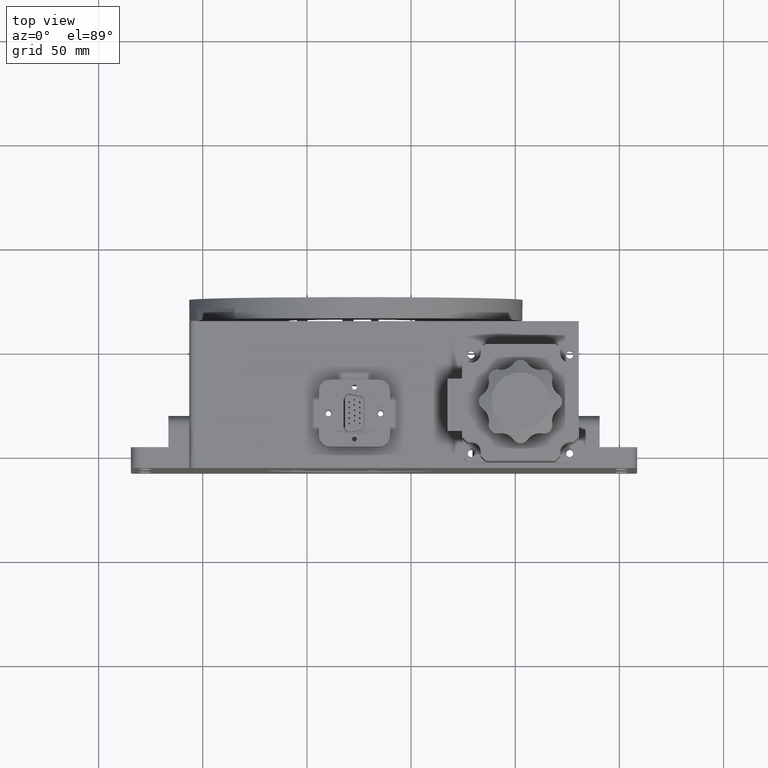
[diagram: clean part render]
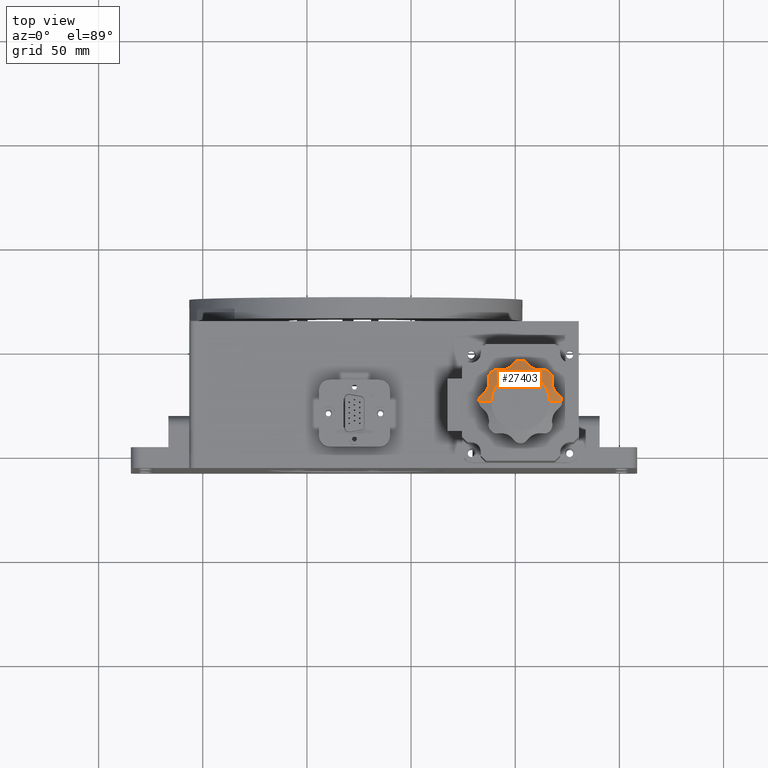
[diagram: same view with one face highlighted and labeled with its STEP entity id]
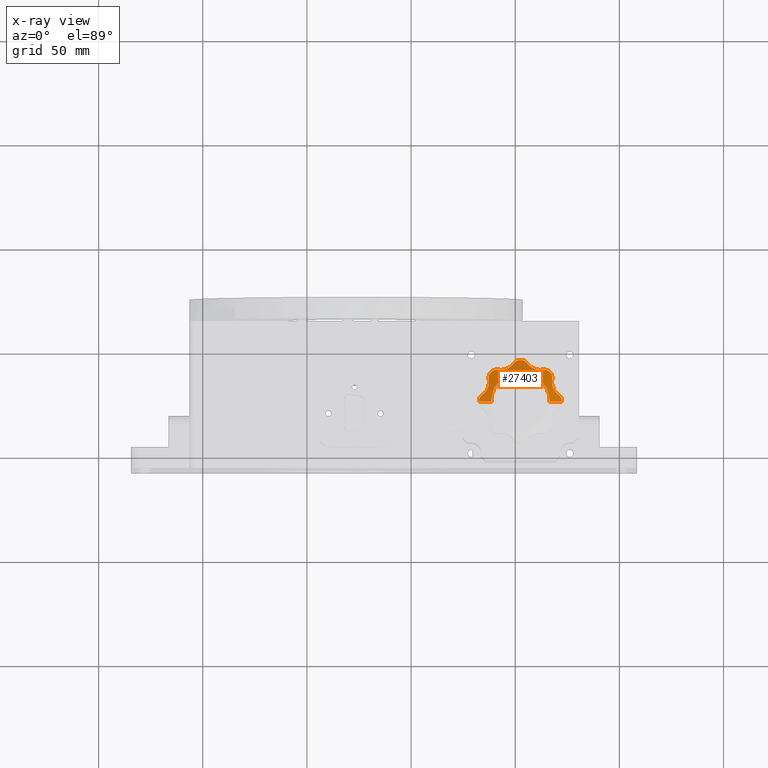
[diagram: x-ray of the same camera — body ghosted, the highlighted face saturated]
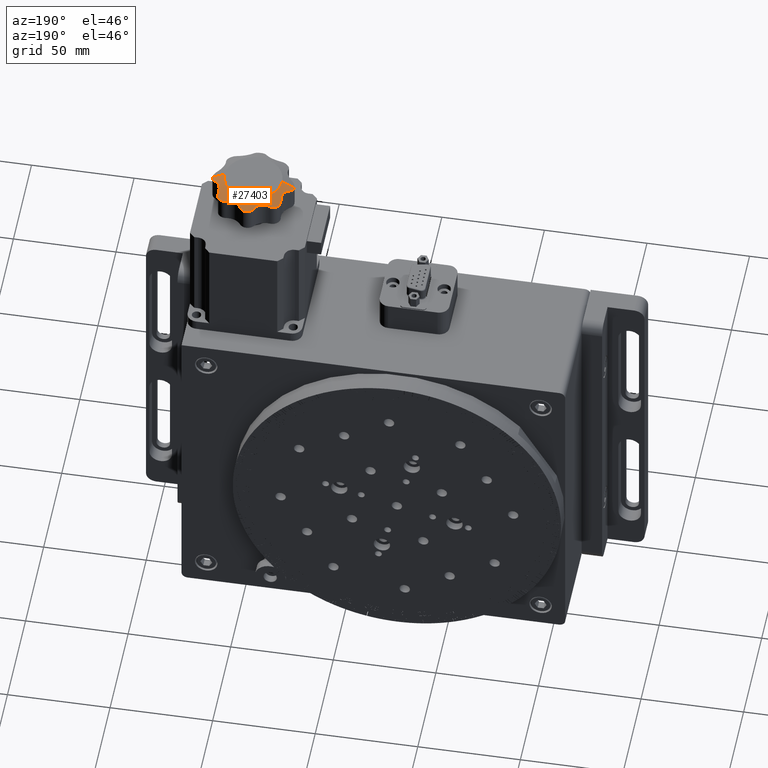
[diagram: same view with one face highlighted and labeled with its STEP entity id]
A machine part, top view. The second image highlights one B-rep face of the part: STEP entity #27403.
The next image is the same camera in x-ray: the body ghosted, the highlighted face saturated — about 0% of this face is hidden behind the body in this view.
A second angle (auxiliary view) of the same face is appended — the face is thin or edge-on in the first view.
In plain terms, the highlighted conical surface has half-angle 63 deg.
Its self-contained STEP definition (entity closure, byte-faithful):
#19 = CARTESIAN_POINT ( 'NONE',  ( 237.3913583251216700, 32.26983697631885000, 157.9076970187258000 ) ) ;
#92 = CARTESIAN_POINT ( 'NONE',  ( 267.6593156579953600, 31.75294113229230300, 158.0153070941807400 ) ) ;
#359 = CARTESIAN_POINT ( 'NONE',  ( 234.7460957891600500, 26.68400874897199400, 157.6957180678858500 ) ) ;
#555 = CARTESIAN_POINT ( 'NONE',  ( 267.6419160565790200, 32.34121878844458600, 157.8681554785693200 ) ) ;
#1271 = CARTESIAN_POINT ( 'NONE',  ( 267.6419160565790200, 32.77534877471968100, 157.7520165911938100 ) ) ;
#2040 = CARTESIAN_POINT ( 'NONE',  ( 264.2549869360204900, 38.29609788310630600, 157.1045522164380400 ) ) ;
#2088 = CARTESIAN_POINT ( 'NONE',  ( 272.2155535825086200, 24.49970920865670000, 156.8593759186634600 ) ) ;
#2996 = B_SPLINE_CURVE_WITH_KNOTS ( 'NONE', 3,
 ( #18462, #26855, #2088, #10441, #69002, #18820, #77401, #27234, #85816, #35621 ),
 .UNSPECIFIED., .F., .F.,
 ( 4, 2, 2, 2, 4 ),
 ( 1.845941825692407700E-006, 0.0007127976259201230600, 0.001423749310014553700, 0.002134700994108984200, 0.002845652678203415000 ),
 .UNSPECIFIED. ) ;
#3100 = CARTESIAN_POINT ( 'NONE',  ( 237.5383515512843900, 35.99283737778640100, 156.8382766644687400 ) ) ;
#3200 = CARTESIAN_POINT ( 'NONE',  ( 256.6521355745474600, 40.25110680748105800, 157.8936131362178500 ) ) ;
#3814 = AXIS2_PLACEMENT_3D ( 'NONE', #62390, #12269, #70787 ) ;
#4942 = ORIENTED_EDGE ( 'NONE', *, *, #90875, .T. ) ;
#5010 = VERTEX_POINT ( 'NONE', #81572 ) ;
#5363 = ORIENTED_EDGE ( 'NONE', *, *, #67813, .T. ) ;
#5914 = DIRECTION ( 'NONE',  ( 1.163031447535773400E-017, 1.979074067935038000E-017, 1.000000000000000000 ) ) ;
#5938 = AXIS2_PLACEMENT_3D ( 'NONE', #34021, #92600, #42446 ) ;
#6219 = CARTESIAN_POINT ( 'NONE',  ( 254.4316530506146100, 42.53368578314128000, 156.9340889782051200 ) ) ;
#6789 = CARTESIAN_POINT ( 'NONE',  ( 245.6636187473102700, 38.57582878604114300, 158.2667672571537300 ) ) ;
#6890 = EDGE_CURVE ( 'NONE', #105737, #55947, #78995, .T. ) ;
#7569 = CARTESIAN_POINT ( 'NONE',  ( 241.8777998498895600, 38.25348212235918100, 157.4624876279490900 ) ) ;
#8078 = CARTESIAN_POINT ( 'NONE',  ( 269.8976088687136900, 26.98524406972234900, 157.8431600133842200 ) ) ;
#8365 = CARTESIAN_POINT ( 'NONE',  ( 237.2184003983645900, 30.86624647211544200, 158.1777368135645400 ) ) ;
#8440 = CARTESIAN_POINT ( 'NONE',  ( 267.6419160565790200, 32.34121878844458600, 157.8681554785693200 ) ) ;
#8715 = CARTESIAN_POINT ( 'NONE',  ( 234.2031295973080500, 26.27481088816402600, 157.4624876279490900 ) ) ;
#9290 = EDGE_CURVE ( 'NONE', #34991, #58186, #10231, .T. ) ;
#9447 = ORIENTED_EDGE ( 'NONE', *, *, #81890, .F. ) ;
#9630 = CARTESIAN_POINT ( 'NONE',  ( 267.7534821223590600, 33.62220015011084200, 157.4624876279490600 ) ) ;
#9690 = CARTESIAN_POINT ( 'NONE',  ( 267.6419160565790200, 32.34121878844458600, 157.8681554785693200 ) ) ;
#10231 = CIRCLE ( 'NONE', #29215, 19.88783151651546500 ) ;
#10389 = CARTESIAN_POINT ( 'NONE',  ( 263.5722132574891200, 38.31287218392945700, 157.3055536155509600 ) ) ;
#10441 = CARTESIAN_POINT ( 'NONE',  ( 272.0159357040424800, 24.92163010490067200, 156.9420244716241900 ) ) ;
#11031 = CARTESIAN_POINT ( 'NONE',  ( 237.2465178776408300, 33.62220015011070000, 157.4624876279490600 ) ) ;
#11200 = CARTESIAN_POINT ( 'NONE',  ( 260.7157047989857100, 38.21937809799151600, 158.1225106314464300 ) ) ;
#11433 = EDGE_CURVE ( 'NONE', #74063, #96725, #93611, .T. ) ;
#11554 = CARTESIAN_POINT ( 'NONE',  ( 267.2845492367055200, 36.30199031336037800, 156.7999999999999500 ) ) ;
#11559 = CARTESIAN_POINT ( 'NONE',  ( 255.9698768873822100, 41.01875098533089000, 157.5844689233042900 ) ) ;
#11702 = CARTESIAN_POINT ( 'NONE',  ( 237.1862915010153500, 34.31370849898488000, 157.2321513908461000 ) ) ;
#12133 = CARTESIAN_POINT ( 'NONE',  ( 252.4999999999999400, 22.99999999999997200, 156.7999999999999500 ) ) ;
#12269 = DIRECTION ( 'NONE',  ( 1.163031447535773400E-017, 1.979074067935038000E-017, 1.000000000000000000 ) ) ;
#12905 = CARTESIAN_POINT ( 'NONE',  ( 267.8353190381724300, 34.52552917857944000, 157.1610722483294500 ) ) ;
#12958 = B_SPLINE_CURVE_WITH_KNOTS ( 'NONE', 3,
 ( #45470, #3100, #20575, #79153, #28994, #87561, #37375, #95965 ),
 .UNSPECIFIED., .F., .F.,
 ( 4, 2, 2, 4 ),
 ( 1.845941825613747800E-006, 0.001060830556685183900, 0.001590322864114977400, 0.002119815171544771200 ),
 .UNSPECIFIED. ) ;
#13722 = CARTESIAN_POINT ( 'NONE',  ( 248.8352221863461300, 40.74086692416695900, 157.7063469930233500 ) ) ;
#14217 = VERTEX_POINT ( 'NONE', #108242 ) ;
#14450 = CARTESIAN_POINT ( 'NONE',  ( 248.3713421540838900, 40.23818802919775800, 157.9076968662358800 ) ) ;
#14559 = CARTESIAN_POINT ( 'NONE',  ( 253.5483274682062800, 42.86018257591580000, 156.7999999999999500 ) ) ;
#14720 = EDGE_CURVE ( 'NONE', #23153, #32430, #86217, .T. ) ;
#15154 = ORIENTED_EDGE ( 'NONE', *, *, #46894, .T. ) ;
#15171 = CARTESIAN_POINT ( 'NONE',  ( 245.1526071381896700, 38.41300267155308700, 158.2338197077304800 ) ) ;
#15235 = CARTESIAN_POINT ( 'NONE',  ( 251.0002907913432200, 42.71555358250861900, 156.8593759186634600 ) ) ;
#16450 = CARTESIAN_POINT ( 'NONE',  ( 269.1262320310050900, 27.88224356309235200, 158.1053658163796500 ) ) ;
#16744 = CARTESIAN_POINT ( 'NONE',  ( 236.9335400712124600, 29.84310483437166200, 158.2712213111371400 ) ) ;
#17211 = CARTESIAN_POINT ( 'NONE',  ( 255.7748108881640100, 41.29687040269193700, 157.4624876279490900 ) ) ;
#17952 = VERTEX_POINT ( 'NONE', #9690 ) ;
#18225 = CARTESIAN_POINT ( 'NONE',  ( 266.4999999999999400, 22.99999999999997900, 159.7999999999999800 ) ) ;
#18462 = CARTESIAN_POINT ( 'NONE',  ( 272.3601825759157600, 24.04832746820619600, 156.7999999999999500 ) ) ;
#18749 = ORIENTED_EDGE ( 'NONE', *, *, #62883, .T. ) ;
#18773 = CARTESIAN_POINT ( 'NONE',  ( 263.1222001501103600, 38.25348212235939400, 157.4624876279490600 ) ) ;
#18820 = CARTESIAN_POINT ( 'NONE',  ( 271.6280055042728300, 25.50394357603632800, 157.1045522205683900 ) ) ;
#19212 = EDGE_CURVE ( 'NONE', #58782, #58629, #2996, .T. ) ;
#19428 = CARTESIAN_POINT ( 'NONE',  ( 241.4313529255851700, 38.33184240520761000, 157.2997279871319700 ) ) ;
#19587 = CARTESIAN_POINT ( 'NONE',  ( 259.6807303797405700, 38.45506756187331400, 158.2519293113117800 ) ) ;
#20380 = ORIENTED_EDGE ( 'NONE', *, *, #48576, .T. ) ;
#20522 = DIRECTION ( 'NONE',  ( -1.000000000000000000, -1.744507413526949400E-016, 0.0000000000000000000 ) ) ;
#20575 = CARTESIAN_POINT ( 'NONE',  ( 237.4071583832806300, 35.66974006896801800, 156.8940759838538700 ) ) ;
#20623 = EDGE_LOOP ( 'NONE', ( #9447, #40504, #89248, #54652, #91943, #99851, #52096, #61997, #32359, #54977, #20380, #83063, #18749, #38991, #5363, #41905, #90691, #30438, #55347, #4942, #15154, #29695 ) ) ;
#21310 = CARTESIAN_POINT ( 'NONE',  ( 267.7534821223590600, 33.62220015011084200, 157.4624876279490600 ) ) ;
#23153 = VERTEX_POINT ( 'NONE', #64590 ) ;
#23569 = CARTESIAN_POINT ( 'NONE',  ( 244.2895339026112300, 38.22019407640752300, 158.1234121039777300 ) ) ;
#23635 = CARTESIAN_POINT ( 'NONE',  ( 250.3756728672116800, 42.39726155890812700, 156.9914101639428200 ) ) ;
#23819 = CARTESIAN_POINT ( 'NONE',  ( 233.5065113060109400, 25.69392727460923400, 157.1610719225172900 ) ) ;
#24223 = EDGE_CURVE ( 'NONE', #86134, #73723, #51222, .T. ) ;
#24484 = EDGE_CURVE ( 'NONE', #58629, #17952, #82072, .T. ) ;
#24857 = CARTESIAN_POINT ( 'NONE',  ( 268.6329812239821400, 28.62713173099844600, 158.2288222905056900 ) ) ;
#25126 = CARTESIAN_POINT ( 'NONE',  ( 236.6521741729587200, 29.17972233872338400, 158.2667672483696300 ) ) ;
#26805 = CARTESIAN_POINT ( 'NONE',  ( 265.5944398022851900, 37.90344518668395300, 156.8256971238457700 ) ) ;
#26855 = CARTESIAN_POINT ( 'NONE',  ( 272.2974943339667700, 24.27915997677382300, 156.8256971240976400 ) ) ;
#27099 = DIRECTION ( 'NONE',  ( 1.163031447535773400E-017, 1.979074067935038000E-017, 1.000000000000000000 ) ) ;
#27234 = CARTESIAN_POINT ( 'NONE',  ( 271.1570728212484500, 25.99859869842762800, 157.3055536226904100 ) ) ;
#27283 = B_SPLINE_CURVE_WITH_KNOTS ( 'NONE', 3,
 ( #47847, #56287, #15235, #73783, #23635, #82187, #32008, #90614, #40434, #98988 ),
 .UNSPECIFIED., .F., .F.,
 ( 4, 2, 2, 2, 4 ),
 ( 1.845941825703057600E-006, 0.0007127976259200867400, 0.001423749310014470500, 0.002134700994108854500, 0.002845652678203238100 ),
 .UNSPECIFIED. ) ;
#27403 = ADVANCED_FACE ( 'NONE', ( #77408 ), #66921, .T. ) ;
#27996 = CARTESIAN_POINT ( 'NONE',  ( 258.8447139801065800, 38.77245465182242200, 158.2715224530973900 ) ) ;
#28994 = CARTESIAN_POINT ( 'NONE',  ( 237.2407862417136900, 34.99380450088322200, 157.0444533669841900 ) ) ;
#29215 = AXIS2_PLACEMENT_3D ( 'NONE', #76544, #27099, #57479 ) ;
#29695 = ORIENTED_EDGE ( 'NONE', *, *, #52135, .F. ) ;
#29711 = CARTESIAN_POINT ( 'NONE',  ( 267.6782867069437700, 35.44651678098869500, 156.9340889378584100 ) ) ;
#30438 = ORIENTED_EDGE ( 'NONE', *, *, #82370, .T. ) ;
#31600 = CARTESIAN_POINT ( 'NONE',  ( 249.2251891118359000, 41.29687040269195100, 157.4624876279490900 ) ) ;
#31940 = CARTESIAN_POINT ( 'NONE',  ( 243.2376291435349700, 38.13437783158879300, 157.8936132756212800 ) ) ;
#32008 = CARTESIAN_POINT ( 'NONE',  ( 249.8215938939477800, 41.97955883692399200, 157.1674099949588600 ) ) ;
#32197 = CARTESIAN_POINT ( 'NONE',  ( 232.7654975517237100, 24.51111057135554100, 156.8515187176439300 ) ) ;
#32359 = ORIENTED_EDGE ( 'NONE', *, *, #34734, .T. ) ;
#32430 = VERTEX_POINT ( 'NONE', #103499 ) ;
#33148 = CARTESIAN_POINT ( 'NONE',  ( 237.2465178776408300, 33.62220015011070000, 157.4624876279490600 ) ) ;
#33219 = CARTESIAN_POINT ( 'NONE',  ( 268.2301810557759700, 29.43182977399426300, 158.2757041354542800 ) ) ;
#33388 = CIRCLE ( 'NONE', #3814, 13.99999999999998400 ) ;
#33454 = B_SPLINE_CURVE_WITH_KNOTS ( 'NONE', 3,
 ( #102965, #44467, #61331, #11200, #69752, #19587, #78160, #27996, #86571, #36386, #94966, #44830, #103329, #53304, #3200, #61688, #11559, #70107 ),
 .UNSPECIFIED., .F., .F.,
 ( 4, 2, 2, 2, 2, 2, 2, 2, 4 ),
 ( 2.131679596593171900E-007, 0.002139037759767207400, 0.003208450055671061400, 0.004277862351574915300, 0.004812568499526923000, 0.005347274647478929800, 0.006416686943382944200, 0.007486099239286959600, 0.008555511535190973200 ),
 .UNSPECIFIED. ) ;
#33522 = CARTESIAN_POINT ( 'NONE',  ( 236.4059696899273000, 28.70324688186116900, 158.2338196571570600 ) ) ;
#34021 = CARTESIAN_POINT ( 'NONE',  ( 252.4999999999999400, 22.99999999999997200, 156.7999999999999500 ) ) ;
#34734 = EDGE_CURVE ( 'NONE', #67130, #103161, #37041, .T. ) ;
#34991 = VERTEX_POINT ( 'NONE', #82039 ) ;
#35621 = CARTESIAN_POINT ( 'NONE',  ( 270.7968704026918700, 26.27481088816415400, 157.4624876279490900 ) ) ;
#35659 = CARTESIAN_POINT ( 'NONE',  ( 263.1222001501103600, 38.25348212235939400, 157.4624876279490600 ) ) ;
#36163 = B_SPLINE_CURVE_WITH_KNOTS ( 'NONE', 3,
 ( #76911, #68869, #61173, #11031 ),
 .UNSPECIFIED., .F., .F.,
 ( 4, 4 ),
 ( 0.002119815171544771200, 0.002845652650325450800 ),
 .UNSPECIFIED. ) ;
#36230 = CARTESIAN_POINT ( 'NONE',  ( 240.0534832190115500, 38.17828670694424900, 156.9340889378583500 ) ) ;
#36386 = CARTESIAN_POINT ( 'NONE',  ( 258.3594398049402800, 39.00844370797665300, 158.2479042270338700 ) ) ;
#37041 = B_SPLINE_CURVE_WITH_KNOTS ( 'NONE', 3,
 ( #43658, #26805, #76999, #102160, #52108, #2040, #60522, #10389, #68956, #18773 ),
 .UNSPECIFIED., .F., .F.,
 ( 4, 2, 2, 2, 4 ),
 ( 1.845941825669782200E-006, 0.0007127976189506428400, 0.001423749296075616000, 0.002134700973200589400, 0.002845652650325562200 ),
 .UNSPECIFIED. ) ;
#37375 = CARTESIAN_POINT ( 'NONE',  ( 237.1862915010153800, 34.48296988118300300, 157.1809043312552800 ) ) ;
#38085 = CARTESIAN_POINT ( 'NONE',  ( 267.2845492367055200, 36.30199031336037800, 156.7999999999999500 ) ) ;
#38782 = B_SPLINE_CURVE_WITH_KNOTS ( 'NONE', 3,
 ( #56323, #47883, #89603, #6219, #64704, #14559 ),
 .UNSPECIFIED., .F., .F.,
 ( 4, 2, 4 ),
 ( 2.561101793545407800E-007, 0.001425904833248670300, 0.002851553556317986200 ),
 .UNSPECIFIED. ) ;
#38991 = ORIENTED_EDGE ( 'NONE', *, *, #11433, .T. ) ;
#39757 = CARTESIAN_POINT ( 'NONE',  ( 252.4999999999999400, 22.99999999999997200, 159.7999999999999800 ) ) ;
#40021 = CARTESIAN_POINT ( 'NONE',  ( 247.5476549759786700, 39.57110591280400800, 158.1225106727056300 ) ) ;
#40105 = VERTEX_POINT ( 'NONE', #11702 ) ;
#40366 = CARTESIAN_POINT ( 'NONE',  ( 242.2123927498954600, 38.19475443748547100, 157.5844690265437600 ) ) ;
#40434 = CARTESIAN_POINT ( 'NONE',  ( 249.3550554229111600, 41.48203000465138500, 157.3812778788823700 ) ) ;
#40504 = ORIENTED_EDGE ( 'NONE', *, *, #82750, .T. ) ;
#40682 = EDGE_CURVE ( 'NONE', #73723, #67130, #81731, .T. ) ;
#41089 = CARTESIAN_POINT ( 'NONE',  ( 267.7534821223590600, 33.62220015011084200, 157.4624876279490600 ) ) ;
#41317 = CARTESIAN_POINT ( 'NONE',  ( 270.3281509931109100, 26.60355895203695600, 157.6680647907423900 ) ) ;
#41681 = CARTESIAN_POINT ( 'NONE',  ( 267.9254955901666300, 30.28906229173465500, 158.2416332507994800 ) ) ;
#41905 = ORIENTED_EDGE ( 'NONE', *, *, #9290, .T. ) ;
#41954 = CARTESIAN_POINT ( 'NONE',  ( 235.9320209486633600, 27.95662572260395300, 158.1234119966748600 ) ) ;
#42232 = VECTOR ( 'NONE', #75123, 1000.000000000000100 ) ;
#42446 = DIRECTION ( 'NONE',  ( -1.000000000000000000, -1.744507413526949400E-016, 0.0000000000000000000 ) ) ;
#43658 = CARTESIAN_POINT ( 'NONE',  ( 265.8019903133599700, 37.78454923670597800, 156.7999999999999500 ) ) ;
#44467 = CARTESIAN_POINT ( 'NONE',  ( 262.4532974490603600, 38.13607644208971000, 157.7063472167101300 ) ) ;
#44669 = CARTESIAN_POINT ( 'NONE',  ( 239.1980096866399500, 37.78454923670582100, 156.7999999999999500 ) ) ;
#44830 = CARTESIAN_POINT ( 'NONE',  ( 257.7461346814236000, 39.36615583551907300, 158.1782248456928200 ) ) ;
#44914 = LINE ( 'NONE', #49861, #42232 ) ;
#45470 = CARTESIAN_POINT ( 'NONE',  ( 237.7154507632943400, 36.30199031336023600, 156.7999999999999500 ) ) ;
#46724 = CARTESIAN_POINT ( 'NONE',  ( 265.8019903133599700, 37.78454923670597800, 156.7999999999999500 ) ) ;
#46894 = EDGE_CURVE ( 'NONE', #14217, #78367, #56680, .T. ) ;
#47847 = CARTESIAN_POINT ( 'NONE',  ( 251.4516725317936300, 42.86018257591580000, 156.7999999999999300 ) ) ;
#47883 = CARTESIAN_POINT ( 'NONE',  ( 255.5145346328822000, 41.66796470288769400, 157.2997281778311300 ) ) ;
#48227 = DIRECTION ( 'NONE',  ( -1.000000000000000000, -2.478176394252584600E-016, 0.0000000000000000000 ) ) ;
#48494 = CARTESIAN_POINT ( 'NONE',  ( 246.6491607120237900, 39.00592656906525900, 158.2519292569572300 ) ) ;
#48576 = EDGE_CURVE ( 'NONE', #99581, #105737, #38782, .T. ) ;
#49861 = CARTESIAN_POINT ( 'NONE',  ( 238.4999999999999700, 22.99999999999996800, 159.7999999999999800 ) ) ;
#49902 = CARTESIAN_POINT ( 'NONE',  ( 252.4999999999999400, 22.99999999999997200, 156.7999999999999500 ) ) ;
#50132 = CARTESIAN_POINT ( 'NONE',  ( 267.7302792191275700, 31.16214534001814600, 158.1301160192734600 ) ) ;
#50226 = AXIS2_PLACEMENT_3D ( 'NONE', #49902, #108358, #58339 ) ;
#50418 = CARTESIAN_POINT ( 'NONE',  ( 235.2488931925189500, 27.15213557454759700, 157.8936131362178800 ) ) ;
#50584 = VERTEX_POINT ( 'NONE', #61487 ) ;
#50640 = AXIS2_PLACEMENT_3D ( 'NONE', #12133, #70652, #20522 ) ;
#51222 = B_SPLINE_CURVE_WITH_KNOTS ( 'NONE', 3,
 ( #21310, #71440, #12905, #29711, #88272, #38085 ),
 .UNSPECIFIED., .F., .F.,
 ( 4, 2, 4 ),
 ( 2.128886231478264400E-007, 0.001425860909439165800, 0.002851508930255184100 ),
 .UNSPECIFIED. ) ;
#51899 = CARTESIAN_POINT ( 'NONE',  ( 266.4999999999999400, 22.99999999999997500, 159.7999999999999800 ) ) ;
#52096 = ORIENTED_EDGE ( 'NONE', *, *, #24223, .T. ) ;
#52108 = CARTESIAN_POINT ( 'NONE',  ( 264.7138090749869000, 38.21806130307884100, 156.9914101614185700 ) ) ;
#52135 = EDGE_CURVE ( 'NONE', #5010, #78367, #44914, .T. ) ;
#53304 = CARTESIAN_POINT ( 'NONE',  ( 256.9074919663826800, 40.01203306021657400, 157.9806272532480000 ) ) ;
#54557 = EDGE_CURVE ( 'NONE', #103161, #99581, #33454, .T. ) ;
#54652 = ORIENTED_EDGE ( 'NONE', *, *, #19212, .T. ) ;
#54977 = ORIENTED_EDGE ( 'NONE', *, *, #54557, .T. ) ;
#55347 = ORIENTED_EDGE ( 'NONE', *, *, #14720, .T. ) ;
#55947 = VERTEX_POINT ( 'NONE', #85158 ) ;
#56083 = CARTESIAN_POINT ( 'NONE',  ( 272.3601825759157600, 24.04832746820619600, 156.7999999999999500 ) ) ;
#56287 = CARTESIAN_POINT ( 'NONE',  ( 251.2208400232260900, 42.79749433396680300, 156.8256971240976400 ) ) ;
#56323 = CARTESIAN_POINT ( 'NONE',  ( 255.7748108881640100, 41.29687040269193700, 157.4624876279490900 ) ) ;
#56680 = CIRCLE ( 'NONE', #5938, 19.88783151651546500 ) ;
#56929 = CARTESIAN_POINT ( 'NONE',  ( 245.8335808355228900, 38.63919999233128500, 158.2715224592072300 ) ) ;
#57191 = CARTESIAN_POINT ( 'NONE',  ( 234.2031295973080500, 26.27481088816402600, 157.4624876279490900 ) ) ;
#57479 = DIRECTION ( 'NONE',  ( -1.000000000000000000, -1.744507413526949400E-016, 0.0000000000000000000 ) ) ;
#58186 = VERTEX_POINT ( 'NONE', #79922 ) ;
#58339 = DIRECTION ( 'NONE',  ( -1.000000000000000000, -1.744507413526949400E-016, 0.0000000000000000000 ) ) ;
#58500 = CARTESIAN_POINT ( 'NONE',  ( 237.2806219020085900, 31.21570479898601700, 158.1225106314464600 ) ) ;
#58591 = CARTESIAN_POINT ( 'NONE',  ( 267.6419160565790800, 32.04980657354980200, 157.9461143652519000 ) ) ;
#58629 = VERTEX_POINT ( 'NONE', #103579 ) ;
#58782 = VERTEX_POINT ( 'NONE', #56083 ) ;
#58854 = CARTESIAN_POINT ( 'NONE',  ( 234.4812490146690600, 26.46987688738226300, 157.5844689233042900 ) ) ;
#59749 = CARTESIAN_POINT ( 'NONE',  ( 267.6797273133559500, 33.20199227904081600, 157.6156813861331300 ) ) ;
#60522 = CARTESIAN_POINT ( 'NONE',  ( 264.0266556550420800, 38.31449387680402200, 157.1674099899103700 ) ) ;
#60677 = DIRECTION ( 'NONE',  ( 0.8910065241883690100, 2.485144142722091700E-016, -0.4539904997395444200 ) ) ;
#61169 = CARTESIAN_POINT ( 'NONE',  ( 241.8777998498895600, 38.25348212235918100, 157.4624876279490900 ) ) ;
#61173 = CARTESIAN_POINT ( 'NONE',  ( 237.2066009731743700, 33.84962121827253900, 157.3795775005561400 ) ) ;
#61331 = CARTESIAN_POINT ( 'NONE',  ( 261.7698369763184600, 38.10864167487839900, 157.9076970187258000 ) ) ;
#61487 = CARTESIAN_POINT ( 'NONE',  ( 272.3878315165154600, 22.99999999999997500, 156.7999999999999500 ) ) ;
#61688 = CARTESIAN_POINT ( 'NONE',  ( 256.1840087489719100, 40.75390421083990600, 157.6957180678858800 ) ) ;
#61757 = B_SPLINE_CURVE_WITH_KNOTS ( 'NONE', 3,
 ( #555, #1271, #59749, #9630 ),
 .UNSPECIFIED., .F., .F.,
 ( 4, 4 ),
 ( 0.007212503309002513100, 0.008555554693879356700 ),
 .UNSPECIFIED. ) ;
#61997 = ORIENTED_EDGE ( 'NONE', *, *, #40682, .T. ) ;
#62390 = CARTESIAN_POINT ( 'NONE',  ( 252.4999999999999400, 22.99999999999997200, 159.7999999999999800 ) ) ;
#62883 = EDGE_CURVE ( 'NONE', #55947, #74063, #27283, .T. ) ;
#64590 = CARTESIAN_POINT ( 'NONE',  ( 237.2465178776408300, 33.62220015011070000, 157.4624876279490600 ) ) ;
#64704 = CARTESIAN_POINT ( 'NONE',  ( 254.0111105713556000, 42.73450244827623100, 156.8515187176439300 ) ) ;
#65328 = CARTESIAN_POINT ( 'NONE',  ( 245.3235710117191700, 38.46292887568891700, 158.2479042614596900 ) ) ;
#66645 = CARTESIAN_POINT ( 'NONE',  ( 269.3120699247532500, 27.64567900398783400, 158.0471494995148300 ) ) ;
#66915 = CARTESIAN_POINT ( 'NONE',  ( 237.0449324381267800, 30.18073037974082200, 158.2519293113118400 ) ) ;
#66921 = CONICAL_SURFACE ( 'NONE', #80317, 13.99999999999998400, 1.099557428756430000 ) ;
#67130 = VERTEX_POINT ( 'NONE', #46724 ) ;
#67813 = EDGE_CURVE ( 'NONE', #96725, #34991, #102960, .T. ) ;
#68349 = AXIS2_PLACEMENT_3D ( 'NONE', #103254, #5914, #85766 ) ;
#68869 = CARTESIAN_POINT ( 'NONE',  ( 237.1862915010153500, 34.08168198380099100, 157.3024017722139800 ) ) ;
#68956 = CARTESIAN_POINT ( 'NONE',  ( 263.3449571646624500, 38.29258039298555600, 157.3812778587598900 ) ) ;
#69002 = CARTESIAN_POINT ( 'NONE',  ( 271.8972615589080400, 25.12432713278824900, 156.9914101639428200 ) ) ;
#69752 = CARTESIAN_POINT ( 'NONE',  ( 260.3662464721151700, 38.28159960163543500, 158.1777368135644800 ) ) ;
#70107 = CARTESIAN_POINT ( 'NONE',  ( 255.7748108881640100, 41.29687040269193700, 157.4624876279490900 ) ) ;
#70652 = DIRECTION ( 'NONE',  ( 1.163031447535773400E-017, 1.979074067935038000E-017, 1.000000000000000000 ) ) ;
#70787 = DIRECTION ( 'NONE',  ( -1.000000000000000000, -2.478176394252584600E-016, 0.0000000000000000000 ) ) ;
#71440 = CARTESIAN_POINT ( 'NONE',  ( 267.8318424052072800, 34.06864707441521700, 157.2997279871319200 ) ) ;
#72174 = EDGE_CURVE ( 'NONE', #58186, #40105, #12958, .T. ) ;
#72713 = EDGE_CURVE ( 'NONE', #50584, #58782, #88696, .T. ) ;
#73719 = CARTESIAN_POINT ( 'NONE',  ( 244.6369582939747400, 38.28219731838607500, 158.1782249368032200 ) ) ;
#73723 = VERTEX_POINT ( 'NONE', #11554 ) ;
#73783 = CARTESIAN_POINT ( 'NONE',  ( 250.5783698950992300, 42.51593570404262600, 156.9420244716241700 ) ) ;
#74063 = VERTEX_POINT ( 'NONE', #101377 ) ;
#75044 = CARTESIAN_POINT ( 'NONE',  ( 268.7874064925749700, 28.37230715703530800, 158.1959166495826100 ) ) ;
#75123 = DIRECTION ( 'NONE',  ( -0.8910065241883690100, -1.573672019880078900E-016, -0.4539904997395444200 ) ) ;
#75320 = CARTESIAN_POINT ( 'NONE',  ( 236.7275453481776100, 29.34471398010676800, 158.2715224530974800 ) ) ;
#76544 = CARTESIAN_POINT ( 'NONE',  ( 252.4999999999999400, 22.99999999999997200, 156.7999999999999500 ) ) ;
#76911 = CARTESIAN_POINT ( 'NONE',  ( 237.1862915010153500, 34.31370849898488000, 157.2321513908461000 ) ) ;
#76999 = CARTESIAN_POINT ( 'NONE',  ( 265.3805470859817900, 38.00145618236290800, 156.8593759180046400 ) ) ;
#77401 = CARTESIAN_POINT ( 'NONE',  ( 271.4795588369239000, 25.67840610605219000, 157.1674099949588600 ) ) ;
#77408 = FACE_OUTER_BOUND ( 'NONE', #20623, .T. ) ;
#78160 = CARTESIAN_POINT ( 'NONE',  ( 259.3431048343713300, 38.56645992878763000, 158.2712213111370300 ) ) ;
#78367 = VERTEX_POINT ( 'NONE', #99524 ) ;
#78995 = CIRCLE ( 'NONE', #68349, 19.88783151651546500 ) ;
#79064 = VECTOR ( 'NONE', #60677, 1000.000000000000100 ) ;
#79153 = CARTESIAN_POINT ( 'NONE',  ( 237.2742689622841400, 35.16590967332482600, 157.0033968980166000 ) ) ;
#79922 = CARTESIAN_POINT ( 'NONE',  ( 237.7154507632943400, 36.30199031336023600, 156.7999999999999500 ) ) ;
#80296 = EDGE_CURVE ( 'NONE', #17952, #86134, #61757, .T. ) ;
#80317 = AXIS2_PLACEMENT_3D ( 'NONE', #39757, #98335, #48227 ) ;
#81572 = CARTESIAN_POINT ( 'NONE',  ( 238.4999999999999700, 22.99999999999996800, 159.7999999999999800 ) ) ;
#81731 = CIRCLE ( 'NONE', #50226, 19.88783151651546500 ) ;
#81890 = EDGE_CURVE ( 'NONE', #82733, #5010, #33388, .T. ) ;
#82039 = CARTESIAN_POINT ( 'NONE',  ( 239.1980096866399500, 37.78454923670582100, 156.7999999999999500 ) ) ;
#82072 = B_SPLINE_CURVE_WITH_KNOTS ( 'NONE', 3,
 ( #91489, #41317, #8078, #66645, #16450, #75044, #24857, #83421, #33219, #91845, #41681, #100192, #50132, #92, #58591, #8440 ),
 .UNSPECIFIED., .F., .F.,
 ( 4, 2, 2, 2, 2, 2, 2, 4 ),
 ( 2.564491608131124700E-007, 0.001803318164121241700, 0.002704849021601452000, 0.003606379879081662300, 0.004507910736561872600, 0.005409441594042083000, 0.006310972451522293300, 0.007212503309002513100 ),
 .UNSPECIFIED. ) ;
#82132 = CARTESIAN_POINT ( 'NONE',  ( 243.5872436450109400, 38.14589139243837900, 157.9806272895485200 ) ) ;
#82187 = CARTESIAN_POINT ( 'NONE',  ( 249.9960564239636100, 42.12800550427292000, 157.1045522205684200 ) ) ;
#82370 = EDGE_CURVE ( 'NONE', #40105, #23153, #36163, .T. ) ;
#82385 = CARTESIAN_POINT ( 'NONE',  ( 232.9663142168585400, 24.93165305061448200, 156.9340889782051200 ) ) ;
#82733 = VERTEX_POINT ( 'NONE', #18225 ) ;
#82750 = EDGE_CURVE ( 'NONE', #82733, #50584, #101221, .T. ) ;
#83063 = ORIENTED_EDGE ( 'NONE', *, *, #6890, .T. ) ;
#83421 = CARTESIAN_POINT ( 'NONE',  ( 268.3544517893239500, 29.15668406221549300, 158.2687201121260000 ) ) ;
#83709 = CARTESIAN_POINT ( 'NONE',  ( 236.4915562920233200, 28.85943980494043300, 158.2479042270338100 ) ) ;
#85158 = CARTESIAN_POINT ( 'NONE',  ( 251.4516725317936300, 42.86018257591580000, 156.7999999999999300 ) ) ;
#85766 = DIRECTION ( 'NONE',  ( -1.000000000000000000, -1.744507413526949400E-016, 0.0000000000000000000 ) ) ;
#85816 = CARTESIAN_POINT ( 'NONE',  ( 270.9820300046513400, 26.14494457708881100, 157.3812778788824300 ) ) ;
#86134 = VERTEX_POINT ( 'NONE', #41089 ) ;
#86217 = B_SPLINE_CURVE_WITH_KNOTS ( 'NONE', 3,
 ( #33148, #100118, #19, #58500, #8365, #66915, #16744, #75320, #25126, #83709, #33522, #92113, #41954, #100478, #50418, #359, #58854, #8715 ),
 .UNSPECIFIED., .F., .F.,
 ( 4, 2, 2, 2, 2, 2, 2, 2, 4 ),
 ( 2.131679597206393300E-007, 0.002139037759767641000, 0.003208450055671597000, 0.004277862351575552900, 0.004812568499527515400, 0.005347274647479477100, 0.006416686943383443900, 0.007486099239287411500, 0.008555511535191379100 ),
 .UNSPECIFIED. ) ;
#86404 = CARTESIAN_POINT ( 'NONE',  ( 240.9744708214210200, 38.33531903817274900, 157.1610722483293900 ) ) ;
#86571 = CARTESIAN_POINT ( 'NONE',  ( 258.6797223387230800, 38.84782582704129100, 158.2667672483696000 ) ) ;
#87561 = CARTESIAN_POINT ( 'NONE',  ( 237.1969899873211300, 34.65284822802365000, 157.1331138828683200 ) ) ;
#88272 = CARTESIAN_POINT ( 'NONE',  ( 267.5229169029902300, 35.88588420570756900, 156.8515186887566700 ) ) ;
#88696 = CIRCLE ( 'NONE', #50640, 19.88783151651546500 ) ;
#89248 = ORIENTED_EDGE ( 'NONE', *, *, #72713, .T. ) ;
#89603 = CARTESIAN_POINT ( 'NONE',  ( 255.1939272746092200, 41.99348869398895800, 157.1610719225172700 ) ) ;
#90548 = CARTESIAN_POINT ( 'NONE',  ( 242.5510819602776600, 38.15889358946783700, 157.6957182112121500 ) ) ;
#90614 = CARTESIAN_POINT ( 'NONE',  ( 249.5014013015723200, 41.65707282124856900, 157.3055536226902700 ) ) ;
#90691 = ORIENTED_EDGE ( 'NONE', *, *, #72174, .T. ) ;
#90804 = CARTESIAN_POINT ( 'NONE',  ( 232.6398174240841300, 24.04832746820617800, 156.7999999999999500 ) ) ;
#90875 = EDGE_CURVE ( 'NONE', #32430, #14217, #94553, .T. ) ;
#91489 = CARTESIAN_POINT ( 'NONE',  ( 270.7968704026918700, 26.27481088816415400, 157.4624876279490900 ) ) ;
#91845 = CARTESIAN_POINT ( 'NONE',  ( 268.0144141422985100, 30.00150210530446800, 158.2620551456883500 ) ) ;
#91943 = ORIENTED_EDGE ( 'NONE', *, *, #24484, .T. ) ;
#92113 = CARTESIAN_POINT ( 'NONE',  ( 236.1338441644809600, 28.24613468142376100, 158.1782248456928200 ) ) ;
#92600 = DIRECTION ( 'NONE',  ( 1.163031447535773400E-017, 1.979074067935038000E-017, 1.000000000000000000 ) ) ;
#93611 = B_SPLINE_CURVE_WITH_KNOTS ( 'NONE', 3,
 ( #31600, #13722, #14450, #40021, #98577, #48494, #106936, #56929, #6789, #65328, #15171, #73719, #23569, #82132, #31940, #90548, #40366, #98928 ),
 .UNSPECIFIED., .F., .F.,
 ( 4, 2, 2, 2, 2, 2, 2, 2, 4 ),
 ( 2.564491608252442100E-007, 0.002139081010340522000, 0.003208493290930370300, 0.004277905571520218600, 0.004812611711815109100, 0.005347317852109997900, 0.006416730132699683500, 0.007486142413289370100, 0.008555554693879054800 ),
 .UNSPECIFIED. ) ;
#94553 = B_SPLINE_CURVE_WITH_KNOTS ( 'NONE', 3,
 ( #57191, #107198, #23819, #82385, #32197, #90804 ),
 .UNSPECIFIED., .F., .F.,
 ( 4, 2, 4 ),
 ( 2.561101794015369700E-007, 0.001425904833248824900, 0.002851553556318248100 ),
 .UNSPECIFIED. ) ;
#94794 = CARTESIAN_POINT ( 'NONE',  ( 239.6141157942927600, 38.02291690299068700, 156.8515186887566100 ) ) ;
#94966 = CARTESIAN_POINT ( 'NONE',  ( 258.2032468818609300, 39.09403031007268900, 158.2338196571570600 ) ) ;
#95965 = CARTESIAN_POINT ( 'NONE',  ( 237.1862915010153500, 34.31370849898488000, 157.2321513908461000 ) ) ;
#96725 = VERTEX_POINT ( 'NONE', #7569 ) ;
#98335 = DIRECTION ( 'NONE',  ( -1.163031447535773400E-017, -1.979074067935038000E-017, -1.000000000000000000 ) ) ;
#98577 = CARTESIAN_POINT ( 'NONE',  ( 247.2565540031626800, 39.36799925479998300, 158.1777367299795000 ) ) ;
#98928 = CARTESIAN_POINT ( 'NONE',  ( 241.8777998498895600, 38.25348212235918100, 157.4624876279490900 ) ) ;
#98988 = CARTESIAN_POINT ( 'NONE',  ( 249.2251891118359000, 41.29687040269195100, 157.4624876279490900 ) ) ;
#99524 = CARTESIAN_POINT ( 'NONE',  ( 232.6121684834844800, 22.99999999999996800, 156.7999999999999500 ) ) ;
#99581 = VERTEX_POINT ( 'NONE', #17211 ) ;
#99851 = ORIENTED_EDGE ( 'NONE', *, *, #80296, .T. ) ;
#100118 = CARTESIAN_POINT ( 'NONE',  ( 237.3639235579104500, 32.95329744906081300, 157.7063472167101800 ) ) ;
#100192 = CARTESIAN_POINT ( 'NONE',  ( 267.7834239956907800, 30.86938308759956200, 158.1756647833042000 ) ) ;
#100478 = CARTESIAN_POINT ( 'NONE',  ( 235.4879669397834300, 27.40749196638291000, 157.9806272532480300 ) ) ;
#101221 = LINE ( 'NONE', #51899, #79064 ) ;
#101377 = CARTESIAN_POINT ( 'NONE',  ( 249.2251891118359000, 41.29687040269195100, 157.4624876279490900 ) ) ;
#102160 = CARTESIAN_POINT ( 'NONE',  ( 264.9410528081537000, 38.15864815293876700, 156.9420244698525800 ) ) ;
#102960 = B_SPLINE_CURVE_WITH_KNOTS ( 'NONE', 3,
 ( #61169, #19428, #86404, #36230, #94794, #44669 ),
 .UNSPECIFIED., .F., .F.,
 ( 4, 2, 4 ),
 ( 2.128886231746074300E-007, 0.001425860909439221300, 0.002851508930255267800 ),
 .UNSPECIFIED. ) ;
#102965 = CARTESIAN_POINT ( 'NONE',  ( 263.1222001501103600, 38.25348212235939400, 157.4624876279490600 ) ) ;
#103161 = VERTEX_POINT ( 'NONE', #35659 ) ;
#103254 = CARTESIAN_POINT ( 'NONE',  ( 252.4999999999999400, 22.99999999999997200, 156.7999999999999500 ) ) ;
#103329 = CARTESIAN_POINT ( 'NONE',  ( 257.4566257226038000, 39.56797905133656500, 158.1234119966748900 ) ) ;
#103499 = CARTESIAN_POINT ( 'NONE',  ( 234.2031295973080500, 26.27481088816402600, 157.4624876279490900 ) ) ;
#103579 = CARTESIAN_POINT ( 'NONE',  ( 270.7968704026918700, 26.27481088816415400, 157.4624876279490900 ) ) ;
#105737 = VERTEX_POINT ( 'NONE', #106048 ) ;
#106048 = CARTESIAN_POINT ( 'NONE',  ( 253.5483274682062800, 42.86018257591580000, 156.7999999999999500 ) ) ;
#106936 = CARTESIAN_POINT ( 'NONE',  ( 246.3316570384803300, 38.84595546684308700, 158.2712212983297200 ) ) ;
#107198 = CARTESIAN_POINT ( 'NONE',  ( 233.8320352971122400, 26.01453463288224900, 157.2997281778311800 ) ) ;
#108242 = CARTESIAN_POINT ( 'NONE',  ( 232.6398174240841300, 24.04832746820617800, 156.7999999999999500 ) ) ;
#108358 = DIRECTION ( 'NONE',  ( 1.163031447535773400E-017, 1.979074067935038000E-017, 1.000000000000000000 ) ) ;